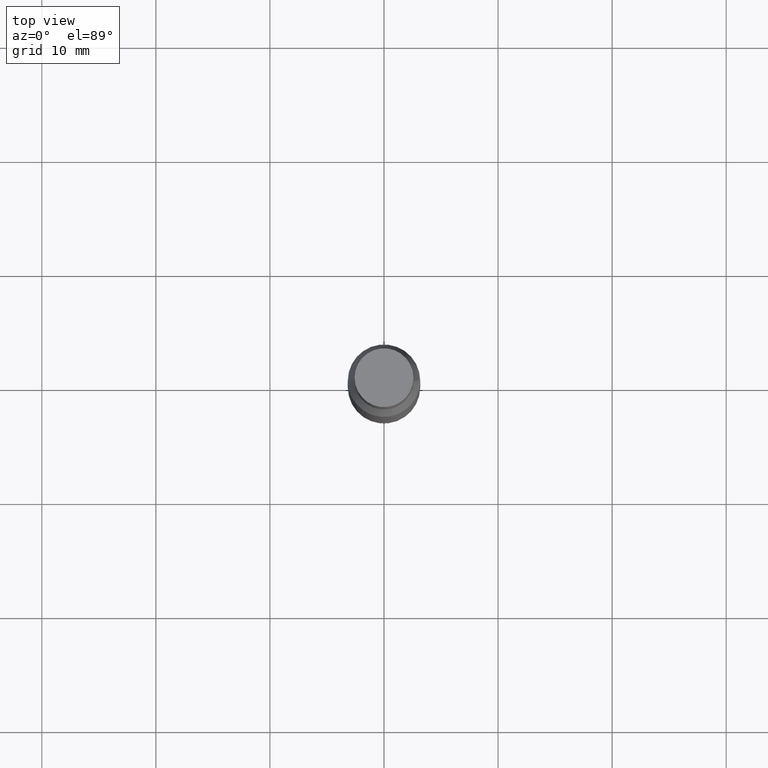
[diagram: clean part render]
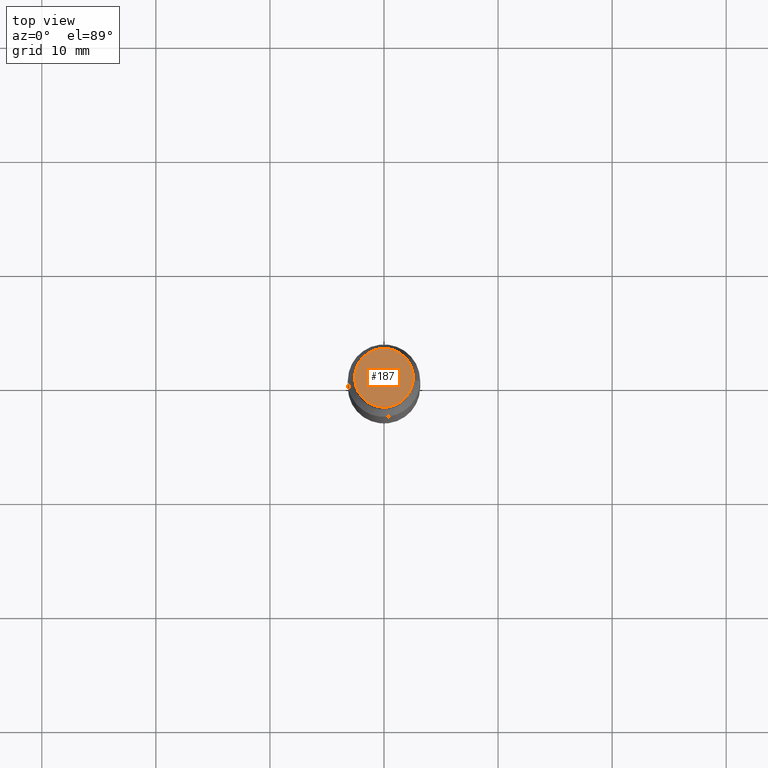
[diagram: same view with one face highlighted and labeled with its STEP entity id]
A machine part, top view. The second image highlights one B-rep face of the part: STEP entity #187.
In plain terms, the highlighted planar face has unit normal (-0, -0, -1).
Its self-contained STEP definition (entity closure, byte-faithful):
#13 = EDGE_LOOP ( 'NONE', ( #859, #776 ) ) ;
#19 = VERTEX_POINT ( 'NONE', #531 ) ;
#67 = DIRECTION ( 'NONE',  ( 1.000000000000000000, -6.982962677686266711E-15, 0.000000000000000000 ) ) ;
#121 = DIRECTION ( 'NONE',  ( 1.000000000000000000, -6.982962677686266711E-15, 0.000000000000000000 ) ) ;
#125 = CARTESIAN_POINT ( 'NONE',  ( 6.113672015462842613E-29, 4.046951474745467748E-19, 5.463695987328526437E-16 ) ) ;
#142 = CARTESIAN_POINT ( 'NONE',  ( 6.113672015462842613E-29, 4.046951474745467748E-19, 5.463695987328526437E-16 ) ) ;
#151 = EDGE_CURVE ( 'NONE', #272, #19, #824, .T. ) ;
#187 = ADVANCED_FACE ( 'NONE', ( #647 ), #738, .F. ) ;
#191 = CARTESIAN_POINT ( 'NONE',  ( 6.154742442311056095E-29, 5.921988397764257759E-17, 5.463695987328526437E-16 ) ) ;
#195 = AXIS2_PLACEMENT_3D ( 'NONE', #191, #724, #345 ) ;
#243 = AXIS2_PLACEMENT_3D ( 'NONE', #125, #706, #121 ) ;
#272 = VERTEX_POINT ( 'NONE', #663 ) ;
#286 = AXIS2_PLACEMENT_3D ( 'NONE', #142, #814, #67 ) ;
#345 = DIRECTION ( 'NONE',  ( 1.000000000000000000, -6.982962677686265922E-15, 2.260776888683160832E-33 ) ) ;
#531 = CARTESIAN_POINT ( 'NONE',  ( -0.1015500000000000708, -1.758630069191064586E-16, 5.463695987328557991E-16 ) ) ;
#583 = EDGE_CURVE ( 'NONE', #19, #272, #586, .T. ) ;
#586 = CIRCLE ( 'NONE', #243, 0.1015500000000000708 ) ;
#647 = FACE_OUTER_BOUND ( 'NONE', #13, .T. ) ;
#663 = CARTESIAN_POINT ( 'NONE',  ( 0.1015500000000000708, -7.087151647715663820E-16, 5.463695987328526437E-16 ) ) ;
#706 = DIRECTION ( 'NONE',  ( 2.445468806185136597E-29, 3.491805094961124077E-15, 1.000000000000000000 ) ) ;
#724 = DIRECTION ( 'NONE',  ( -2.438088387897959208E-29, -3.491805094961123683E-15, -1.000000000000000000 ) ) ;
#738 = PLANE ( 'NONE',  #195 ) ;
#776 = ORIENTED_EDGE ( 'NONE', *, *, #583, .T. ) ;
#814 = DIRECTION ( 'NONE',  ( 2.445468806185136597E-29, 3.491805094961124077E-15, 1.000000000000000000 ) ) ;
#824 = CIRCLE ( 'NONE', #286, 0.1015500000000000708 ) ;
#859 = ORIENTED_EDGE ( 'NONE', *, *, #151, .T. ) ;